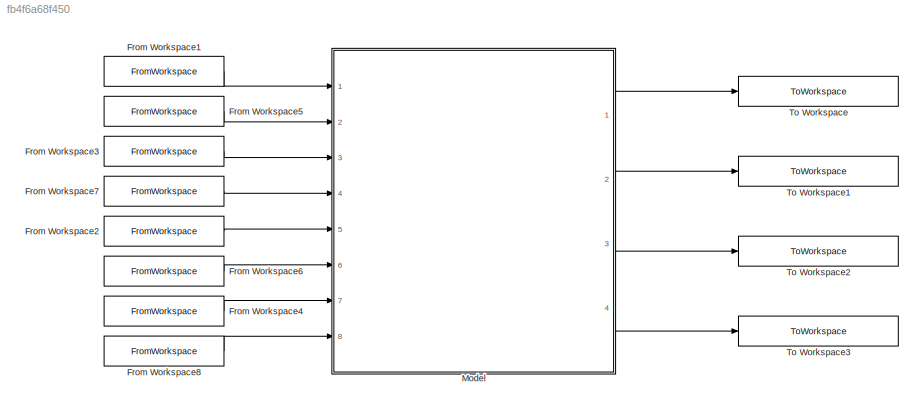
MODEL slx_fb4f6a68f450
KIND model
CONFIG AbsTol = auto
CONFIG FixedStep = sample_time
CONFIG MaxStep = auto
CONFIG MinStep = auto
CONFIG RelTol = 1e-3
CONFIG SampleTimeConstraint = Unconstrained
CONFIG Solver = FixedStepAuto
CONFIG SolverMode = Auto
CONFIG SolverName = FixedStepAuto
CONFIG StartTime = 0.0
CONFIG StopTime = sim_time
BLOCK [FromWorkspace] From Workspace1
  VariableName = SOP_CellTemp
  ZeroCross = on
BLOCK [FromWorkspace] From Workspace2
  VariableName = SOP_CellTempHighFault
  ZeroCross = on
BLOCK [FromWorkspace] From Workspace3
  VariableName = SOP_ChargingStatus
  ZeroCross = on
BLOCK [FromWorkspace] From Workspace4
  VariableName = SOP_PackVoltageFault
  ZeroCross = on
BLOCK [FromWorkspace] From Workspace5
  VariableName = SOP_CellSOC
  ZeroCross = on
BLOCK [FromWorkspace] From Workspace6
  VariableName = SOP_PackCurrentFault
  ZeroCross = on
BLOCK [FromWorkspace] From Workspace7
  VariableName = SOP_DisChargingStatus
  ZeroCross = on
BLOCK [FromWorkspace] From Workspace8
  VariableName = SOP_IntResScale
  ZeroCross = on
BLOCK [ModelReference] Model
  CopyOfModelName = sop.slx
  ModelNameDialog = sop.slx
  ModelReferenceVersion = 1.32
  Ports = [8, 4]
  Variant = off
BLOCK [ToWorkspace] To Workspace
  FixptAsFi = on
  MaxDataPoints = inf
  Ports = [1]
  SampleTime = -1
  Save2DSignal = 3-D array (concatenate along third dimension)
  SaveFormat = Timeseries
  VariableName = SOP_DischgPwLim
BLOCK [ToWorkspace] To Workspace1
  FixptAsFi = on
  MaxDataPoints = inf
  Ports = [1]
  SampleTime = -1
  Save2DSignal = 3-D array (concatenate along third dimension)
  SaveFormat = Timeseries
  VariableName = SOP_DischgCurrentLim
BLOCK [ToWorkspace] To Workspace2
  FixptAsFi = on
  MaxDataPoints = inf
  Ports = [1]
  SampleTime = -1
  Save2DSignal = 3-D array (concatenate along third dimension)
  SaveFormat = Timeseries
  VariableName = SOP_ChgPwtLim
BLOCK [ToWorkspace] To Workspace3
  FixptAsFi = on
  MaxDataPoints = inf
  Ports = [1]
  SampleTime = -1
  Save2DSignal = 3-D array (concatenate along third dimension)
  SaveFormat = Timeseries
  VariableName = SOP_ChgCurrentLim
LINE From Workspace1:1 -> Model:1
LINE From Workspace2:1 -> Model:5
LINE From Workspace3:1 -> Model:3
LINE From Workspace4:1 -> Model:7
LINE From Workspace5:1 -> Model:2
LINE From Workspace6:1 -> Model:6
LINE From Workspace7:1 -> Model:4
LINE From Workspace8:1 -> Model:8
LINE Model:1 -> To Workspace:1
LINE Model:2 -> To Workspace1:1
LINE Model:3 -> To Workspace2:1
LINE Model:4 -> To Workspace3:1
